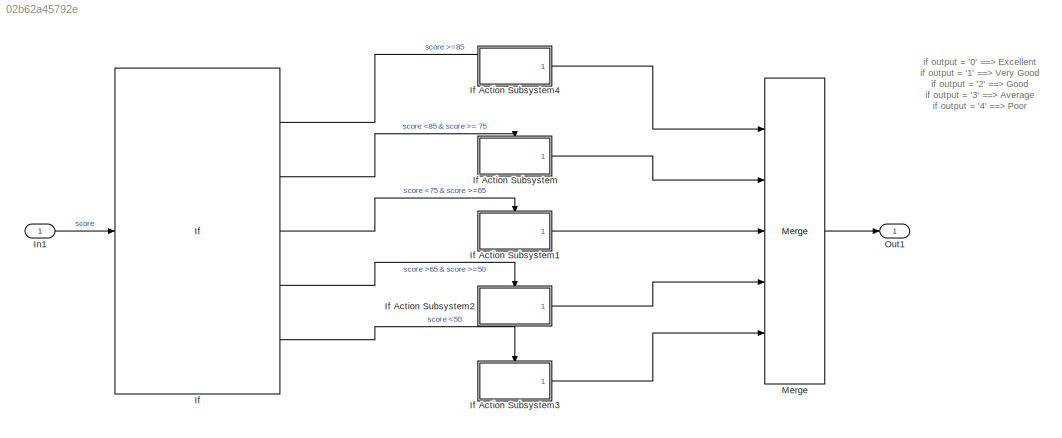
MODEL slx_02b62a45792e
KIND model
CONFIG AbsTol = auto
CONFIG EnableMultiTasking = off
CONFIG FixedStep = auto
CONFIG MaxStep = auto
CONFIG MinStep = auto
CONFIG RelTol = 1e-3
CONFIG SampleTimeConstraint = Unconstrained
CONFIG Solver = FixedStepDiscrete
CONFIG SolverName = FixedStepDiscrete
CONFIG StartTime = 0.0
CONFIG StopTime = 10.0
BLOCK [If] If
  ElseIfExpressions = u1 <85 & u1 >= 75, u1 <75 & u1 >=65, u1 >65 & u1 >=50
  IfExpression = u1>=85
  Ports = [1, 5]
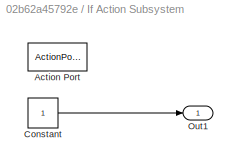
BLOCK [SubSystem] If Action Subsystem
  Ports = [0, 1, 0, 0, 0, 0, 0, 1]
  RequestExecContextInheritance = off
  TreatAsAtomicUnit = on
BLOCK [ActionPort] If Action Subsystem/Action Port
  ActionType = elseif
BLOCK [Constant] If Action Subsystem/Constant
BLOCK [Outport] If Action Subsystem/Out1
  IconDisplay = Port number
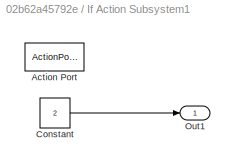
BLOCK [SubSystem] If Action Subsystem1
  Ports = [0, 1, 0, 0, 0, 0, 0, 1]
  RequestExecContextInheritance = off
  TreatAsAtomicUnit = on
BLOCK [ActionPort] If Action Subsystem1/Action Port
  ActionType = elseif
BLOCK [Constant] If Action Subsystem1/Constant
  Value = 2
BLOCK [Outport] If Action Subsystem1/Out1
  IconDisplay = Port number
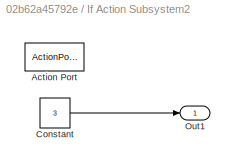
BLOCK [SubSystem] If Action Subsystem2
  Ports = [0, 1, 0, 0, 0, 0, 0, 1]
  RequestExecContextInheritance = off
  TreatAsAtomicUnit = on
BLOCK [ActionPort] If Action Subsystem2/Action Port
  ActionType = elseif
BLOCK [Constant] If Action Subsystem2/Constant
  Value = 3
BLOCK [Outport] If Action Subsystem2/Out1
  IconDisplay = Port number
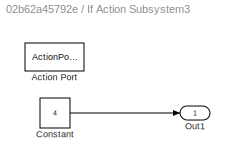
BLOCK [SubSystem] If Action Subsystem3
  Ports = [0, 1, 0, 0, 0, 0, 0, 1]
  RequestExecContextInheritance = off
  TreatAsAtomicUnit = on
BLOCK [ActionPort] If Action Subsystem3/Action Port
  ActionType = else
BLOCK [Constant] If Action Subsystem3/Constant
  Value = 4
BLOCK [Outport] If Action Subsystem3/Out1
  IconDisplay = Port number
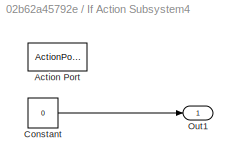
BLOCK [SubSystem] If Action Subsystem4
  Ports = [0, 1, 0, 0, 0, 0, 0, 1]
  RequestExecContextInheritance = off
  TreatAsAtomicUnit = on
BLOCK [ActionPort] If Action Subsystem4/Action Port
  ActionType = then
BLOCK [Constant] If Action Subsystem4/Constant
  Value = 0
BLOCK [Outport] If Action Subsystem4/Out1
  IconDisplay = Port number
BLOCK [Inport] In1
  IconDisplay = Port number
BLOCK [Merge] Merge
  Inputs = 5
  Ports = [5, 1]
BLOCK [Outport] Out1
  IconDisplay = Port number
ANNOTATION (root): if output = '0' ==> Excellent if output = '1' ==> Very Good if output = '2' ==> Good if output = '3' ==> Average if output = '4' ==> Poor
LINE If Action Subsystem/Constant:1 -> If Action Subsystem/Out1:1
LINE If Action Subsystem1/Constant:1 -> If Action Subsystem1/Out1:1
LINE If Action Subsystem1:1 -> Merge:3
LINE If Action Subsystem2/Constant:1 -> If Action Subsystem2/Out1:1
LINE If Action Subsystem2:1 -> Merge:4
LINE If Action Subsystem3/Constant:1 -> If Action Subsystem3/Out1:1
LINE If Action Subsystem3:1 -> Merge:5
LINE If Action Subsystem4/Constant:1 -> If Action Subsystem4/Out1:1
LINE If Action Subsystem4:1 -> Merge:1
LINE If Action Subsystem:1 -> Merge:2
LINE If:1 -> If Action Subsystem4:ifaction
LINE If:2 -> If Action Subsystem:ifaction
LINE If:3 -> If Action Subsystem1:ifaction
LINE If:4 -> If Action Subsystem2:ifaction
LINE If:5 -> If Action Subsystem3:ifaction
LINE In1:1 -> If:1
LINE Merge:1 -> Out1:1
